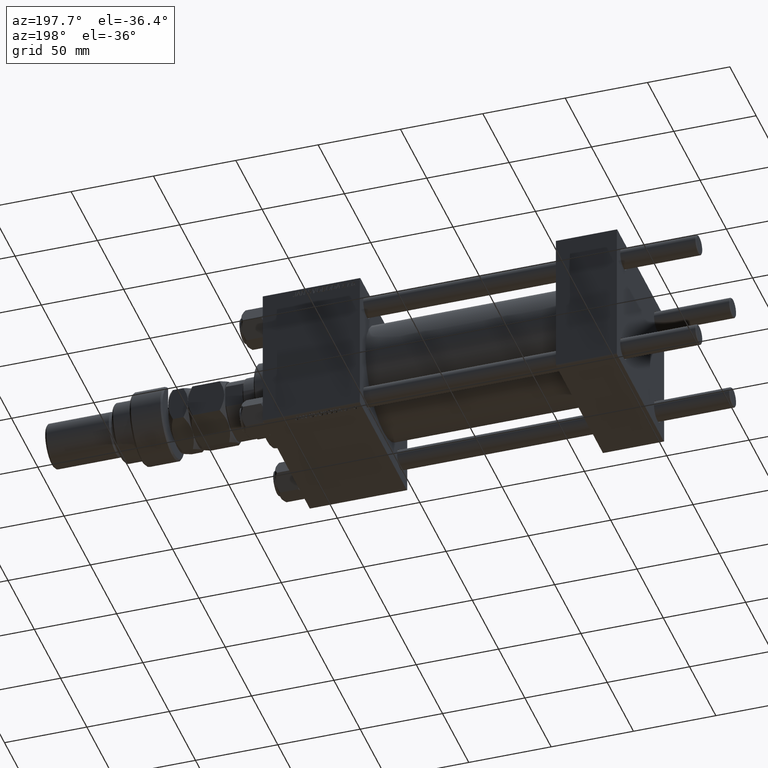
[diagram: clean part render]
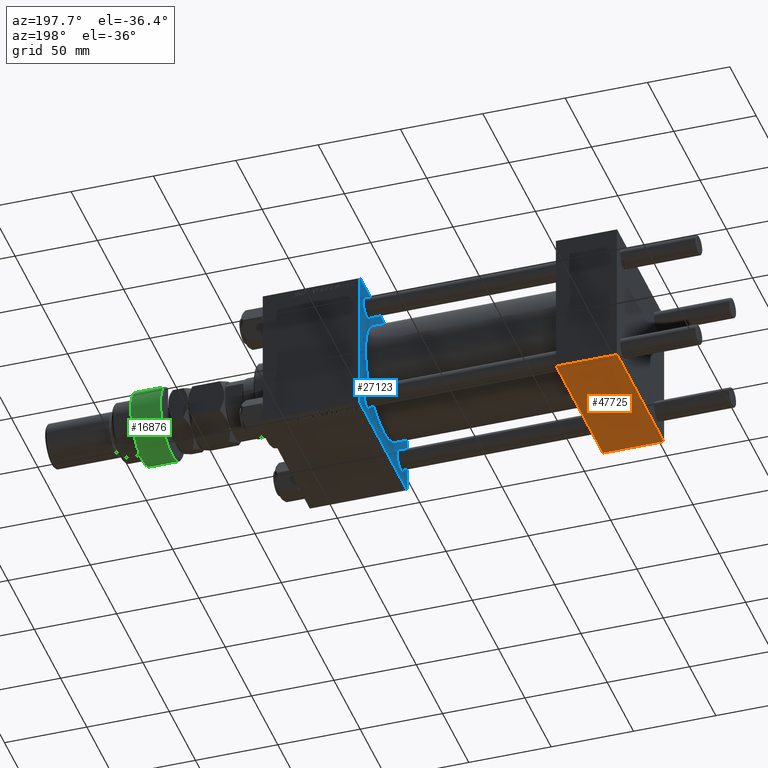
[diagram: same view with three faces highlighted in distinct colors, each labeled with its STEP entity id]
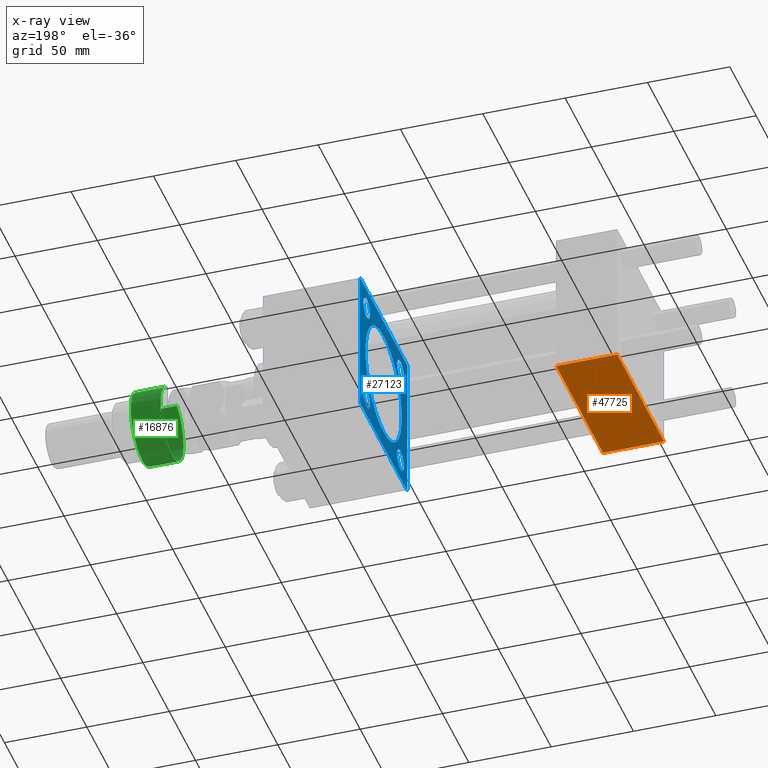
[diagram: x-ray of the same camera — body ghosted, the three highlighted faces saturated]
A machine part, auxiliary view with three faces highlighted in distinct colors.
The next image is the same camera in x-ray (body ghosted, the three faces saturated) — at least one of them is partly hidden behind the body in this view.
Their STEP definitions:

[orange] entity #47725 — the highlighted planar face has unit normal (0, 0, -1).
#1768 = DIRECTION ( 'NONE',  ( 0.000000000000000000, 1.541976423090495880E-16, -1.000000000000000000 ) ) ;
#3023 = VECTOR ( 'NONE', #39848, 1000.000000000000000 ) ;
#3462 = VERTEX_POINT ( 'NONE', #42106 ) ;
#5433 = DIRECTION ( 'NONE',  ( -1.000000000000000000, 0.000000000000000000, 0.000000000000000000 ) ) ;
#5778 = FACE_OUTER_BOUND ( 'NONE', #40619, .T. ) ;
#6451 = ORIENTED_EDGE ( 'NONE', *, *, #36416, .T. ) ;
#7438 = DIRECTION ( 'NONE',  ( 0.000000000000000000, -1.000000000000000000, -1.541976423090495633E-16 ) ) ;
#12364 = CARTESIAN_POINT ( 'NONE',  ( 0.000000000000000000, -44.49999999999998579, -45.00000000000000000 ) ) ;
#15319 = LINE ( 'NONE', #12364, #44047 ) ;
#15437 = LINE ( 'NONE', #19716, #29005 ) ;
#17793 = ORIENTED_EDGE ( 'NONE', *, *, #48514, .T. ) ;
#18756 = VERTEX_POINT ( 'NONE', #20936 ) ;
#18866 = EDGE_CURVE ( 'NONE', #35703, #3462, #27839, .T. ) ;
#19170 = DIRECTION ( 'NONE',  ( 0.000000000000000000, -1.000000000000000000, -1.541976423090495633E-16 ) ) ;
#19716 = CARTESIAN_POINT ( 'NONE',  ( 37.00000000000000000, 44.99999999999998579, -44.99999999999998579 ) ) ;
#20936 = CARTESIAN_POINT ( 'NONE',  ( 37.00000000000000000, -44.49999999999995737, -45.00000000000000000 ) ) ;
#21095 = EDGE_CURVE ( 'NONE', #35703, #25029, #43496, .T. ) ;
#22073 = PLANE ( 'NONE',  #23974 ) ;
#23974 = AXIS2_PLACEMENT_3D ( 'NONE', #38344, #1768, #34350 ) ;
#25029 = VERTEX_POINT ( 'NONE', #43013 ) ;
#25863 = ORIENTED_EDGE ( 'NONE', *, *, #21095, .F. ) ;
#27839 = LINE ( 'NONE', #43600, #3023 ) ;
#29005 = VECTOR ( 'NONE', #7438, 1000.000000000000000 ) ;
#34350 = DIRECTION ( 'NONE',  ( 0.000000000000000000, 1.000000000000000000, 1.541976423090495880E-16 ) ) ;
#35703 = VERTEX_POINT ( 'NONE', #46034 ) ;
#36416 = EDGE_CURVE ( 'NONE', #18756, #25029, #15319, .T. ) ;
#38074 = VECTOR ( 'NONE', #19170, 1000.000000000000000 ) ;
#38344 = CARTESIAN_POINT ( 'NONE',  ( 37.00000000000000000, 44.99999999999998579, -44.99999999999998579 ) ) ;
#39470 = CARTESIAN_POINT ( 'NONE',  ( 0.000000000000000000, 44.99999999999998579, -44.99999999999998579 ) ) ;
#39848 = DIRECTION ( 'NONE',  ( 1.000000000000000000, 0.000000000000000000, 0.000000000000000000 ) ) ;
#40619 = EDGE_LOOP ( 'NONE', ( #25863, #51168, #17793, #6451 ) ) ;
#42106 = CARTESIAN_POINT ( 'NONE',  ( 37.00000000000000000, 44.49999999999998579, -44.99999999999998579 ) ) ;
#43013 = CARTESIAN_POINT ( 'NONE',  ( 0.000000000000000000, -44.49999999999995737, -45.00000000000000000 ) ) ;
#43496 = LINE ( 'NONE', #39470, #38074 ) ;
#43600 = CARTESIAN_POINT ( 'NONE',  ( 37.00000000000000000, 44.49999999999998579, -44.99999999999998579 ) ) ;
#44047 = VECTOR ( 'NONE', #5433, 1000.000000000000000 ) ;
#46034 = CARTESIAN_POINT ( 'NONE',  ( 0.000000000000000000, 44.49999999999998579, -44.99999999999998579 ) ) ;
#47725 = ADVANCED_FACE ( 'NONE', ( #5778 ), #22073, .T. ) ;
#48514 = EDGE_CURVE ( 'NONE', #3462, #18756, #15437, .T. ) ;
#51168 = ORIENTED_EDGE ( 'NONE', *, *, #18866, .T. ) ;

[blue] entity #27123 — the highlighted planar face has unit normal (-1, 0, 0).
#38 = FACE_BOUND ( 'NONE', #29762, .T. ) ;
#87 = CARTESIAN_POINT ( 'NONE',  ( 156.0000000000000000, 32.14999999999999147, 32.15000000000000568 ) ) ;
#875 = VECTOR ( 'NONE', #46303, 999.9999999999998863 ) ;
#1317 = CARTESIAN_POINT ( 'NONE',  ( 156.0000000000000000, -45.00000000000000000, 44.50000000000001421 ) ) ;
#1357 = LINE ( 'NONE', #37937, #37159 ) ;
#1675 = VERTEX_POINT ( 'NONE', #35434 ) ;
#2379 = CIRCLE ( 'NONE', #36503, 6.499999999999977796 ) ;
#2914 = AXIS2_PLACEMENT_3D ( 'NONE', #42971, #47245, #6365 ) ;
#2973 = FACE_BOUND ( 'NONE', #24537, .T. ) ;
#3524 = DIRECTION ( 'NONE',  ( -0.000000000000000000, 0.000000000000000000, 1.000000000000000000 ) ) ;
#4049 = DIRECTION ( 'NONE',  ( 1.000000000000000000, 0.000000000000000000, 0.000000000000000000 ) ) ;
#4574 = EDGE_LOOP ( 'NONE', ( #21598, #28341 ) ) ;
#4960 = AXIS2_PLACEMENT_3D ( 'NONE', #48392, #40087, #8558 ) ;
#5054 = VERTEX_POINT ( 'NONE', #50163 ) ;
#5710 = ORIENTED_EDGE ( 'NONE', *, *, #40006, .T. ) ;
#6003 = EDGE_CURVE ( 'NONE', #37559, #28817, #33421, .T. ) ;
#6207 = DIRECTION ( 'NONE',  ( -0.000000000000000000, 0.7071067811865474617, 0.7071067811865474617 ) ) ;
#6365 = DIRECTION ( 'NONE',  ( 0.000000000000000000, 0.000000000000000000, 1.000000000000000000 ) ) ;
#7331 = VERTEX_POINT ( 'NONE', #31946 ) ;
#7747 = EDGE_CURVE ( 'NONE', #43528, #8898, #27479, .T. ) ;
#8235 = EDGE_LOOP ( 'NONE', ( #30610, #13491, #41967, #17129, #24417, #26827, #26793, #43223 ) ) ;
#8315 = CARTESIAN_POINT ( 'NONE',  ( 156.0000000000000000, -32.14999999999997726, 32.15000000000001279 ) ) ;
#8558 = DIRECTION ( 'NONE',  ( 0.000000000000000000, 0.000000000000000000, 1.000000000000000000 ) ) ;
#8898 = VERTEX_POINT ( 'NONE', #35403 ) ;
#9615 = VERTEX_POINT ( 'NONE', #52325 ) ;
#10089 = VERTEX_POINT ( 'NONE', #41283 ) ;
#10479 = EDGE_CURVE ( 'NONE', #12285, #31498, #32952, .T. ) ;
#10487 = CARTESIAN_POINT ( 'NONE',  ( 156.0000000000000000, 4.225031457058367344E-15, -34.49999999999999289 ) ) ;
#11513 = DIRECTION ( 'NONE',  ( -1.000000000000000000, 0.000000000000000000, -0.000000000000000000 ) ) ;
#12096 = DIRECTION ( 'NONE',  ( -0.000000000000000000, -0.7071067811865474617, -0.7071067811865474617 ) ) ;
#12100 = CARTESIAN_POINT ( 'NONE',  ( 156.0000000000000000, 32.14999999999999147, -32.15000000000000568 ) ) ;
#12171 = VERTEX_POINT ( 'NONE', #1317 ) ;
#12285 = VERTEX_POINT ( 'NONE', #52559 ) ;
#13151 = EDGE_CURVE ( 'NONE', #25025, #1675, #25962, .T. ) ;
#13155 = LINE ( 'NONE', #29467, #48470 ) ;
#13491 = ORIENTED_EDGE ( 'NONE', *, *, #45961, .T. ) ;
#14117 = DIRECTION ( 'NONE',  ( 0.000000000000000000, 0.000000000000000000, -1.000000000000000000 ) ) ;
#14476 = ORIENTED_EDGE ( 'NONE', *, *, #29886, .T. ) ;
#14910 = CIRCLE ( 'NONE', #20896, 6.499999999999950262 ) ;
#15197 = EDGE_CURVE ( 'NONE', #9615, #41783, #31207, .T. ) ;
#15255 = PLANE ( 'NONE',  #26369 ) ;
#15530 = CARTESIAN_POINT ( 'NONE',  ( 156.0000000000000000, -44.50000000000000000, 44.99999999999998579 ) ) ;
#16054 = FACE_OUTER_BOUND ( 'NONE', #8235, .T. ) ;
#16163 = DIRECTION ( 'NONE',  ( 0.000000000000000000, 0.000000000000000000, 1.000000000000000000 ) ) ;
#16248 = VERTEX_POINT ( 'NONE', #49804 ) ;
#16363 = DIRECTION ( 'NONE',  ( 1.000000000000000000, 0.000000000000000000, 0.000000000000000000 ) ) ;
#16465 = CARTESIAN_POINT ( 'NONE',  ( 156.0000000000000000, 45.00000000000001421, 45.00000000000000000 ) ) ;
#16630 = DIRECTION ( 'NONE',  ( 0.000000000000000000, 0.000000000000000000, 1.000000000000000000 ) ) ;
#16652 = EDGE_CURVE ( 'NONE', #16248, #44592, #27829, .T. ) ;
#16956 = CARTESIAN_POINT ( 'NONE',  ( 156.0000000000000000, -45.00000000000000000, 44.99999999999998579 ) ) ;
#17129 = ORIENTED_EDGE ( 'NONE', *, *, #46060, .T. ) ;
#18181 = CARTESIAN_POINT ( 'NONE',  ( 156.0000000000000000, 32.14999999999999147, -38.64999999999998437 ) ) ;
#18269 = EDGE_CURVE ( 'NONE', #31498, #5054, #1357, .T. ) ;
#18576 = CARTESIAN_POINT ( 'NONE',  ( 156.0000000000000000, 32.14999999999999147, 25.65000000000005542 ) ) ;
#19274 = CIRCLE ( 'NONE', #45742, 6.499999999999950262 ) ;
#19339 = VECTOR ( 'NONE', #25763, 1000.000000000000000 ) ;
#19600 = EDGE_CURVE ( 'NONE', #37502, #12285, #20474, .T. ) ;
#20148 = VECTOR ( 'NONE', #21286, 1000.000000000000000 ) ;
#20453 = CARTESIAN_POINT ( 'NONE',  ( 156.0000000000000000, 45.00000000000001421, 45.00000000000000000 ) ) ;
#20474 = LINE ( 'NONE', #16465, #20148 ) ;
#20654 = AXIS2_PLACEMENT_3D ( 'NONE', #87, #16363, #16630 ) ;
#20801 = DIRECTION ( 'NONE',  ( 1.000000000000000000, 0.000000000000000000, 0.000000000000000000 ) ) ;
#20896 = AXIS2_PLACEMENT_3D ( 'NONE', #20908, #25185, #41472 ) ;
#20908 = CARTESIAN_POINT ( 'NONE',  ( 156.0000000000000000, -32.14999999999997726, 32.15000000000001279 ) ) ;
#20970 = LINE ( 'NONE', #16956, #19339 ) ;
#21146 = ORIENTED_EDGE ( 'NONE', *, *, #7747, .T. ) ;
#21246 = CARTESIAN_POINT ( 'NONE',  ( 156.0000000000000000, 32.14999999999999147, 32.15000000000000568 ) ) ;
#21286 = DIRECTION ( 'NONE',  ( 0.000000000000000000, 0.000000000000000000, -1.000000000000000000 ) ) ;
#21598 = ORIENTED_EDGE ( 'NONE', *, *, #6003, .T. ) ;
#21603 = EDGE_CURVE ( 'NONE', #12171, #7331, #20970, .T. ) ;
#22009 = ORIENTED_EDGE ( 'NONE', *, *, #13151, .T. ) ;
#22218 = VECTOR ( 'NONE', #45047, 1000.000000000000000 ) ;
#22399 = EDGE_CURVE ( 'NONE', #28817, #37559, #27076, .T. ) ;
#23686 = CARTESIAN_POINT ( 'NONE',  ( 156.0000000000000000, 44.50000000000001421, -45.00000000000000000 ) ) ;
#23728 = EDGE_CURVE ( 'NONE', #10089, #37502, #13155, .T. ) ;
#24069 = FACE_BOUND ( 'NONE', #4574, .T. ) ;
#24319 = EDGE_CURVE ( 'NONE', #41783, #9615, #2379, .T. ) ;
#24345 = EDGE_LOOP ( 'NONE', ( #22009, #5710 ) ) ;
#24417 = ORIENTED_EDGE ( 'NONE', *, *, #50162, .F. ) ;
#24537 = EDGE_LOOP ( 'NONE', ( #33307, #50323 ) ) ;
#25025 = VERTEX_POINT ( 'NONE', #39782 ) ;
#25185 = DIRECTION ( 'NONE',  ( 1.000000000000000000, 0.000000000000000000, 0.000000000000000000 ) ) ;
#25603 = ORIENTED_EDGE ( 'NONE', *, *, #31607, .T. ) ;
#25763 = DIRECTION ( 'NONE',  ( 0.000000000000000000, 7.709882115452478166E-17, -1.000000000000000000 ) ) ;
#25962 = CIRCLE ( 'NONE', #2914, 6.499999999999977796 ) ;
#25988 = CARTESIAN_POINT ( 'NONE',  ( 156.0000000000000000, -44.74999999999968736, -44.75000000000031264 ) ) ;
#26369 = AXIS2_PLACEMENT_3D ( 'NONE', #48138, #11513, #3524 ) ;
#26426 = DIRECTION ( 'NONE',  ( 1.000000000000000000, 0.000000000000000000, 0.000000000000000000 ) ) ;
#26793 = ORIENTED_EDGE ( 'NONE', *, *, #19600, .T. ) ;
#26827 = ORIENTED_EDGE ( 'NONE', *, *, #23728, .T. ) ;
#27076 = CIRCLE ( 'NONE', #37319, 34.49999999999999289 ) ;
#27123 = ADVANCED_FACE ( 'NONE', ( #36611, #38, #2973, #31831, #24069, #16054 ), #15255, .T. ) ;
#27479 = CIRCLE ( 'NONE', #20654, 6.499999999999950262 ) ;
#27757 = DIRECTION ( 'NONE',  ( 0.000000000000000000, 0.000000000000000000, 1.000000000000000000 ) ) ;
#27829 = CIRCLE ( 'NONE', #28700, 6.499999999999950262 ) ;
#28341 = ORIENTED_EDGE ( 'NONE', *, *, #22399, .T. ) ;
#28700 = AXIS2_PLACEMENT_3D ( 'NONE', #8315, #4049, #33440 ) ;
#28817 = VERTEX_POINT ( 'NONE', #10487 ) ;
#28943 = DIRECTION ( 'NONE',  ( 1.000000000000000000, 0.000000000000000000, 0.000000000000000000 ) ) ;
#29211 = DIRECTION ( 'NONE',  ( 0.000000000000000000, 0.000000000000000000, 1.000000000000000000 ) ) ;
#29467 = CARTESIAN_POINT ( 'NONE',  ( 156.0000000000000000, 44.75000000000001421, 44.75000000000001421 ) ) ;
#29762 = EDGE_LOOP ( 'NONE', ( #25603, #21146 ) ) ;
#29886 = EDGE_CURVE ( 'NONE', #44592, #16248, #14910, .T. ) ;
#30002 = LINE ( 'NONE', #25988, #875 ) ;
#30610 = ORIENTED_EDGE ( 'NONE', *, *, #18269, .T. ) ;
#31207 = CIRCLE ( 'NONE', #41442, 6.499999999999977796 ) ;
#31498 = VERTEX_POINT ( 'NONE', #23686 ) ;
#31594 = VECTOR ( 'NONE', #6207, 1000.000000000000114 ) ;
#31607 = EDGE_CURVE ( 'NONE', #8898, #43528, #19274, .T. ) ;
#31725 = AXIS2_PLACEMENT_3D ( 'NONE', #31805, #48111, #44101 ) ;
#31805 = CARTESIAN_POINT ( 'NONE',  ( 156.0000000000000000, 0.000000000000000000, 0.000000000000000000 ) ) ;
#31831 = FACE_BOUND ( 'NONE', #24345, .T. ) ;
#31946 = CARTESIAN_POINT ( 'NONE',  ( 156.0000000000000000, -44.99999999999999289, -44.49999999999997158 ) ) ;
#32952 = LINE ( 'NONE', #49268, #40399 ) ;
#33022 = LINE ( 'NONE', #20453, #22218 ) ;
#33307 = ORIENTED_EDGE ( 'NONE', *, *, #15197, .T. ) ;
#33421 = CIRCLE ( 'NONE', #31725, 34.49999999999999289 ) ;
#33440 = DIRECTION ( 'NONE',  ( 0.000000000000000000, 0.000000000000000000, 1.000000000000000000 ) ) ;
#33741 = DIRECTION ( 'NONE',  ( 0.000000000000000000, 0.7071067811865474617, -0.7071067811865474617 ) ) ;
#34185 = CARTESIAN_POINT ( 'NONE',  ( 156.0000000000000000, 0.000000000000000000, 0.000000000000000000 ) ) ;
#35403 = CARTESIAN_POINT ( 'NONE',  ( 156.0000000000000000, 32.14999999999999147, 38.64999999999995595 ) ) ;
#35434 = CARTESIAN_POINT ( 'NONE',  ( 156.0000000000000000, -32.14999999999997726, -38.64999999999999147 ) ) ;
#36119 = ORIENTED_EDGE ( 'NONE', *, *, #16652, .T. ) ;
#36503 = AXIS2_PLACEMENT_3D ( 'NONE', #45123, #20801, #27757 ) ;
#36611 = FACE_BOUND ( 'NONE', #38961, .T. ) ;
#37159 = VECTOR ( 'NONE', #42213, 1000.000000000000000 ) ;
#37319 = AXIS2_PLACEMENT_3D ( 'NONE', #34185, #26426, #14117 ) ;
#37502 = VERTEX_POINT ( 'NONE', #42771 ) ;
#37526 = DIRECTION ( 'NONE',  ( 1.000000000000000000, 0.000000000000000000, 0.000000000000000000 ) ) ;
#37559 = VERTEX_POINT ( 'NONE', #39262 ) ;
#37937 = CARTESIAN_POINT ( 'NONE',  ( 156.0000000000000000, 45.00000000000001421, -45.00000000000000000 ) ) ;
#38961 = EDGE_LOOP ( 'NONE', ( #14476, #36119 ) ) ;
#39262 = CARTESIAN_POINT ( 'NONE',  ( 156.0000000000000000, 0.000000000000000000, 34.49999999999999289 ) ) ;
#39782 = CARTESIAN_POINT ( 'NONE',  ( 156.0000000000000000, -32.14999999999997726, -25.65000000000003411 ) ) ;
#40006 = EDGE_CURVE ( 'NONE', #1675, #25025, #42471, .T. ) ;
#40087 = DIRECTION ( 'NONE',  ( 1.000000000000000000, 0.000000000000000000, 0.000000000000000000 ) ) ;
#40399 = VECTOR ( 'NONE', #12096, 1000.000000000000114 ) ;
#41283 = CARTESIAN_POINT ( 'NONE',  ( 156.0000000000000000, 44.50000000000001421, 45.00000000000000000 ) ) ;
#41442 = AXIS2_PLACEMENT_3D ( 'NONE', #12100, #28943, #29211 ) ;
#41472 = DIRECTION ( 'NONE',  ( 0.000000000000000000, 0.000000000000000000, 1.000000000000000000 ) ) ;
#41783 = VERTEX_POINT ( 'NONE', #18181 ) ;
#41967 = ORIENTED_EDGE ( 'NONE', *, *, #21603, .F. ) ;
#42213 = DIRECTION ( 'NONE',  ( 0.000000000000000000, -1.000000000000000000, 0.000000000000000000 ) ) ;
#42471 = CIRCLE ( 'NONE', #4960, 6.499999999999977796 ) ;
#42771 = CARTESIAN_POINT ( 'NONE',  ( 156.0000000000000000, 45.00000000000001421, 44.50000000000000000 ) ) ;
#42971 = CARTESIAN_POINT ( 'NONE',  ( 156.0000000000000000, -32.14999999999997726, -32.15000000000001279 ) ) ;
#43223 = ORIENTED_EDGE ( 'NONE', *, *, #10479, .T. ) ;
#43528 = VERTEX_POINT ( 'NONE', #18576 ) ;
#44101 = DIRECTION ( 'NONE',  ( 0.000000000000000000, 0.000000000000000000, -1.000000000000000000 ) ) ;
#44592 = VERTEX_POINT ( 'NONE', #49036 ) ;
#45047 = DIRECTION ( 'NONE',  ( 0.000000000000000000, -1.000000000000000000, -1.541976423090495140E-16 ) ) ;
#45123 = CARTESIAN_POINT ( 'NONE',  ( 156.0000000000000000, 32.14999999999999147, -32.15000000000000568 ) ) ;
#45742 = AXIS2_PLACEMENT_3D ( 'NONE', #21246, #37526, #16163 ) ;
#45961 = EDGE_CURVE ( 'NONE', #5054, #7331, #30002, .T. ) ;
#46060 = EDGE_CURVE ( 'NONE', #12171, #46201, #50055, .T. ) ;
#46201 = VERTEX_POINT ( 'NONE', #15530 ) ;
#46303 = DIRECTION ( 'NONE',  ( 0.000000000000000000, -0.7071067811865525687, 0.7071067811865425767 ) ) ;
#47084 = CARTESIAN_POINT ( 'NONE',  ( 156.0000000000000000, -44.75000000000001421, 44.75000000000001421 ) ) ;
#47245 = DIRECTION ( 'NONE',  ( 1.000000000000000000, 0.000000000000000000, 0.000000000000000000 ) ) ;
#48111 = DIRECTION ( 'NONE',  ( 1.000000000000000000, 0.000000000000000000, 0.000000000000000000 ) ) ;
#48138 = CARTESIAN_POINT ( 'NONE',  ( 156.0000000000000000, 0.000000000000000000, 0.000000000000000000 ) ) ;
#48392 = CARTESIAN_POINT ( 'NONE',  ( 156.0000000000000000, -32.14999999999997726, -32.15000000000001279 ) ) ;
#48470 = VECTOR ( 'NONE', #33741, 1000.000000000000114 ) ;
#49036 = CARTESIAN_POINT ( 'NONE',  ( 156.0000000000000000, -32.14999999999997726, 38.64999999999996305 ) ) ;
#49268 = CARTESIAN_POINT ( 'NONE',  ( 156.0000000000000000, 44.75000000000000000, -44.75000000000000000 ) ) ;
#49804 = CARTESIAN_POINT ( 'NONE',  ( 156.0000000000000000, -32.14999999999997726, 25.65000000000006253 ) ) ;
#50055 = LINE ( 'NONE', #47084, #31594 ) ;
#50162 = EDGE_CURVE ( 'NONE', #10089, #46201, #33022, .T. ) ;
#50163 = CARTESIAN_POINT ( 'NONE',  ( 156.0000000000000000, -44.49999999999995737, -45.00000000000000000 ) ) ;
#50323 = ORIENTED_EDGE ( 'NONE', *, *, #24319, .T. ) ;
#52325 = CARTESIAN_POINT ( 'NONE',  ( 156.0000000000000000, 32.14999999999999147, -25.65000000000002700 ) ) ;
#52559 = CARTESIAN_POINT ( 'NONE',  ( 156.0000000000000000, 45.00000000000001421, -44.49999999999997158 ) ) ;

[green] entity #16876 — the highlighted cylindrical surface (partial cylindrical patch) has radius 22 mm, axis along (-1, -0, 0).
#542 = AXIS2_PLACEMENT_3D ( 'NONE', #35240, #3478, #19757 ) ;
#2511 = CARTESIAN_POINT ( 'NONE',  ( -19.84313483298442193, -9.500000000000005329, 23.00000000000000000 ) ) ;
#2996 = VECTOR ( 'NONE', #37865, 1000.000000000000000 ) ;
#3478 = DIRECTION ( 'NONE',  ( -0.000000000000000000, -0.000000000000000000, -1.000000000000000000 ) ) ;
#6537 = AXIS2_PLACEMENT_3D ( 'NONE', #27729, #52574, #52043 ) ;
#8916 = ORIENTED_EDGE ( 'NONE', *, *, #37983, .T. ) ;
#9197 = VERTEX_POINT ( 'NONE', #47922 ) ;
#9372 = CARTESIAN_POINT ( 'NONE',  ( -19.84313483298442193, -9.500000000000005329, 18.99999999999998579 ) ) ;
#10012 = VERTEX_POINT ( 'NONE', #25264 ) ;
#11127 = VERTEX_POINT ( 'NONE', #9372 ) ;
#11197 = CYLINDRICAL_SURFACE ( 'NONE', #542, 22.00000000000000000 ) ;
#11766 = CIRCLE ( 'NONE', #13475, 22.00000000000000000 ) ;
#12013 = ORIENTED_EDGE ( 'NONE', *, *, #43795, .T. ) ;
#12835 = ORIENTED_EDGE ( 'NONE', *, *, #31445, .F. ) ;
#13475 = AXIS2_PLACEMENT_3D ( 'NONE', #40701, #15055, #39910 ) ;
#15055 = DIRECTION ( 'NONE',  ( -0.000000000000000000, -0.000000000000000000, 1.000000000000000000 ) ) ;
#15623 = DIRECTION ( 'NONE',  ( 1.000000000000000000, 0.000000000000000000, 0.000000000000000000 ) ) ;
#16876 = ADVANCED_FACE ( 'NONE', ( #44081 ), #11197, .T. ) ;
#17826 = ORIENTED_EDGE ( 'NONE', *, *, #40476, .T. ) ;
#19757 = DIRECTION ( 'NONE',  ( -1.000000000000000000, 0.000000000000000000, 0.000000000000000000 ) ) ;
#21847 = LINE ( 'NONE', #22620, #2996 ) ;
#22111 = CARTESIAN_POINT ( 'NONE',  ( 22.00000000000000000, 0.000000000000000000, 1.000000000000000888 ) ) ;
#22620 = CARTESIAN_POINT ( 'NONE',  ( -19.84313483298442904, 9.500000000000000000, 23.00000000000000000 ) ) ;
#25264 = CARTESIAN_POINT ( 'NONE',  ( -19.84313483298442904, 9.500000000000000000, 1.000000000000000888 ) ) ;
#26322 = VERTEX_POINT ( 'NONE', #22111 ) ;
#26393 = ORIENTED_EDGE ( 'NONE', *, *, #30889, .T. ) ;
#27340 = DIRECTION ( 'NONE',  ( -0.000000000000000000, -0.000000000000000000, -1.000000000000000000 ) ) ;
#27729 = CARTESIAN_POINT ( 'NONE',  ( 0.000000000000000000, 0.000000000000000000, 18.99999999999998579 ) ) ;
#27754 = VECTOR ( 'NONE', #27340, 1000.000000000000000 ) ;
#28129 = AXIS2_PLACEMENT_3D ( 'NONE', #52233, #40199, #15623 ) ;
#30889 = EDGE_CURVE ( 'NONE', #11127, #9197, #51403, .T. ) ;
#31445 = EDGE_CURVE ( 'NONE', #36015, #10012, #21847, .T. ) ;
#33648 = EDGE_LOOP ( 'NONE', ( #12835, #8916, #26393, #17826, #12013 ) ) ;
#35240 = CARTESIAN_POINT ( 'NONE',  ( 0.000000000000000000, 0.000000000000000000, 20.00000000000000000 ) ) ;
#35815 = CIRCLE ( 'NONE', #28129, 22.00000000000000000 ) ;
#36015 = VERTEX_POINT ( 'NONE', #51223 ) ;
#37865 = DIRECTION ( 'NONE',  ( -0.000000000000000000, -0.000000000000000000, -1.000000000000000000 ) ) ;
#37983 = EDGE_CURVE ( 'NONE', #36015, #11127, #45812, .T. ) ;
#39910 = DIRECTION ( 'NONE',  ( 1.000000000000000000, 0.000000000000000000, 0.000000000000000000 ) ) ;
#40199 = DIRECTION ( 'NONE',  ( -0.000000000000000000, -0.000000000000000000, 1.000000000000000000 ) ) ;
#40476 = EDGE_CURVE ( 'NONE', #9197, #26322, #11766, .T. ) ;
#40701 = CARTESIAN_POINT ( 'NONE',  ( 0.000000000000000000, 0.000000000000000000, 1.000000000000000888 ) ) ;
#43795 = EDGE_CURVE ( 'NONE', #26322, #10012, #35815, .T. ) ;
#44081 = FACE_OUTER_BOUND ( 'NONE', #33648, .T. ) ;
#45812 = CIRCLE ( 'NONE', #6537, 22.00000000000000000 ) ;
#47922 = CARTESIAN_POINT ( 'NONE',  ( -19.84313483298442193, -9.500000000000005329, 1.000000000000000888 ) ) ;
#51223 = CARTESIAN_POINT ( 'NONE',  ( -19.84313483298442904, 9.500000000000000000, 18.99999999999998579 ) ) ;
#51403 = LINE ( 'NONE', #2511, #27754 ) ;
#52043 = DIRECTION ( 'NONE',  ( 1.000000000000000000, 0.000000000000000000, 0.000000000000000000 ) ) ;
#52233 = CARTESIAN_POINT ( 'NONE',  ( 0.000000000000000000, 0.000000000000000000, 1.000000000000000888 ) ) ;
#52574 = DIRECTION ( 'NONE',  ( 0.000000000000000000, 0.000000000000000000, -1.000000000000000000 ) ) ;